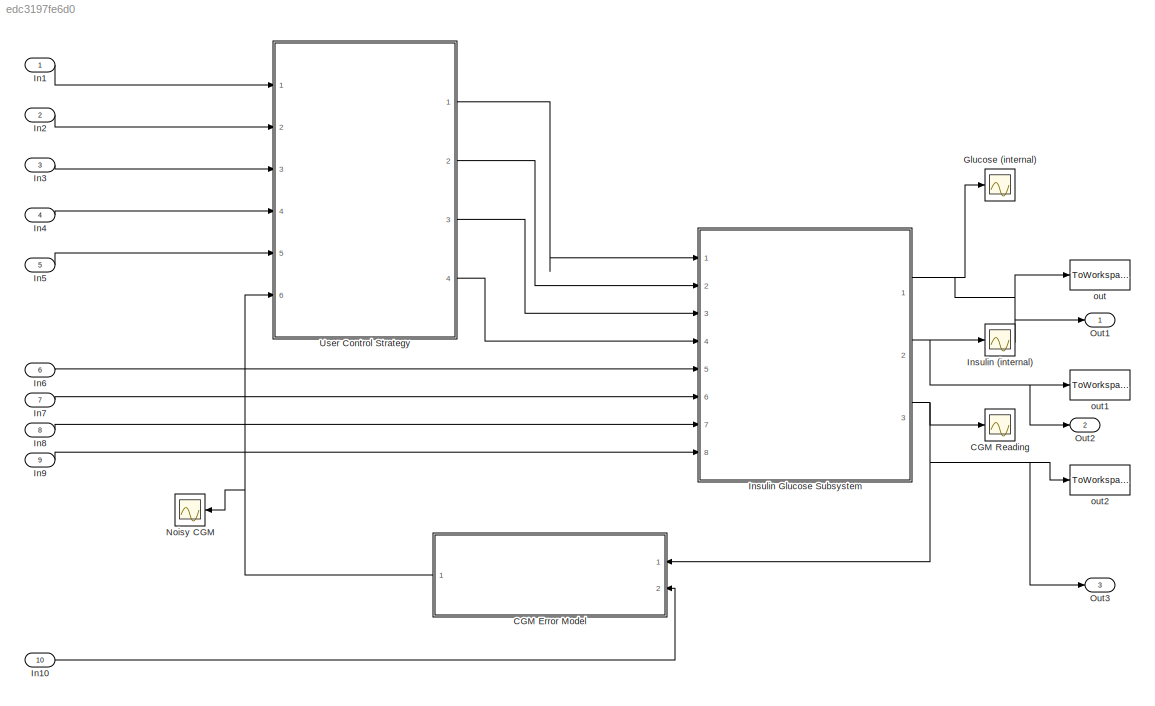
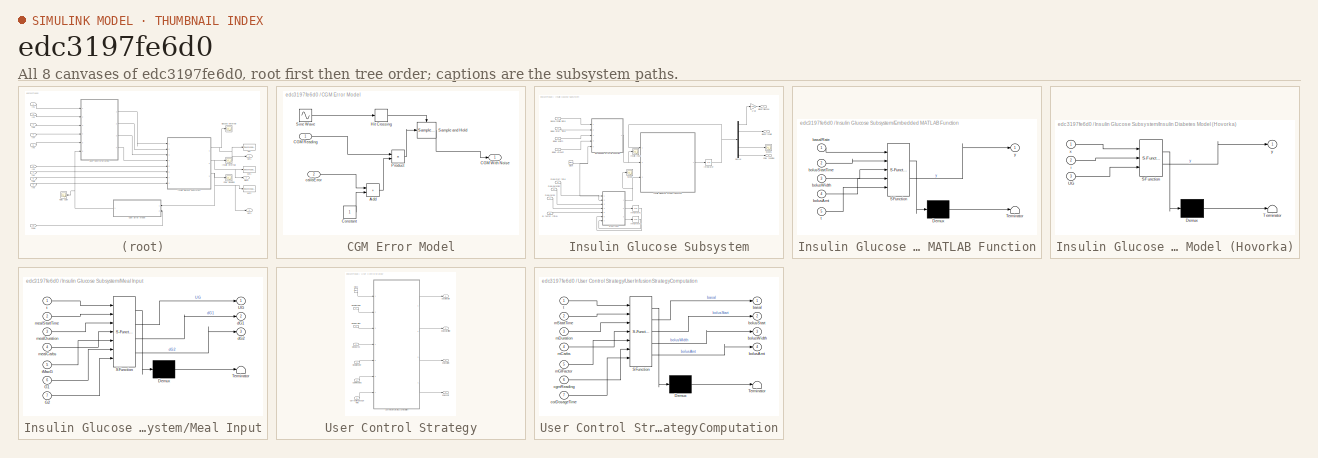
[diagram: thumbnail index - all 8 canvases of the model, root first then tree order]
MODEL mdl_edc3197fe6d0
KIND model
CONFIG AbsTol = auto
CONFIG EnableMultiTasking = on
CONFIG FixedStep = auto
CONFIG MaxStep = auto
CONFIG MinStep = auto
CONFIG RelTol = 1e-3
CONFIG SampleTimeConstraint = Unconstrained
CONFIG SolverName = ode3
CONFIG StartTime = 0
CONFIG StopTime = 500
BLOCK [SubSystem] CGM Error Model
  Ports = [2, 1]
  RequestExecContextInheritance = off
BLOCK [Sum] CGM Error Model/Add
  IconShape = rectangular
  Ports = [2, 1]
BLOCK [Inport] CGM Error Model/CGM Reading
BLOCK [Outport] CGM Error Model/CGM With Noise
  VectorParamsAs1DForOutWhenUnconnected = off
BLOCK [Constant] CGM Error Model/Constant
BLOCK [HitCross] CGM Error Model/Hit Crossing
  HitCrossingDirection = rising
  Ports = [1, 1]
BLOCK [Product] CGM Error Model/Product
  Ports = [2, 1]
  RndMeth = Zero
BLOCK [Reference] CGM Error Model/Sample and Hold  REF=dspsigops/Sample
and Hold
  Ports = [1, 1, 0, 1]
  SourceBlock = dspsigops/Sample\nand Hold
  SourceProductBaseCode = DS
  SourceType = Sample and Hold
BLOCK [Sin] CGM Error Model/Sine Wave
  Frequency = 2 * 3.1415/20
  Ports = [0, 1]
  SampleTime = 0
BLOCK [Inport] CGM Error Model/calibError
  Port = 2
BLOCK [Scope] CGM Reading
  Floating = off
  NumInputPorts = 1
  Ports = [1]
  ScopeSpecificationString = C++SS(StrPVP('Location','[445, 82, 786, 437]'),StrPVP('Open','off'),MxPVP('AxesTitles',54,'struct(''axes1'',''%<SignalLabel>'')'),StrPVP('YMin','0'),StrPVP('YMax','12'),StrPVP('SaveName','ScopeData3'),StrPVP('DataFormat','StructureWithTime'),StrPVP('BlockParamSampleTime','0'),StrPVP('LimitDataPoints','on'),StrPVP('Decimation','1'),StrPVP('BlockParamSampleInput','off'))
BLOCK [Scope] Glucose (internal)
  Floating = off
  NumInputPorts = 1
  Ports = [1]
  ScopeSpecificationString = C++SS(StrPVP('Location','[107, 82, 450, 435]'),StrPVP('Open','off'),StrPVP('ZoomMode','yonly'),MxPVP('AxesTitles',54,'struct(''axes1'',''%<SignalLabel>'')'),StrPVP('YMin','0'),StrPVP('YMax','12'),StrPVP('SaveName','ScopeData5'),StrPVP('DataFormat','StructureWithTime'),StrPVP('BlockParamSampleTime','0'),StrPVP('LimitDataPoints','on'),StrPVP('Decimation','1'),StrPVP('BlockParamSampleInput','off'))
BLOCK [Inport] In1
BLOCK [Inport] In10
  Port = 10
BLOCK [Inport] In2
  Port = 2
BLOCK [Inport] In3
  Port = 3
BLOCK [Inport] In4
  Port = 4
BLOCK [Inport] In5
  Port = 5
BLOCK [Inport] In6
  Port = 6
BLOCK [Inport] In7
  Port = 7
BLOCK [Inport] In8
  Port = 8
BLOCK [Inport] In9
  Port = 9
BLOCK [Scope] Insulin (internal)
  Floating = off
  NumInputPorts = 1
  Ports = [1]
  ScopeSpecificationString = C++SS(StrPVP('Location','[774, 82, 1116, 417]'),StrPVP('Open','off'),MxPVP('AxesTitles',54,'struct(''axes1'',''%<SignalLabel>'')'),StrPVP('YMin','0'),StrPVP('YMax','0.1'),StrPVP('SaveName','ScopeData6'),StrPVP('DataFormat','StructureWithTime'),StrPVP('BlockParamSampleTime','0'),StrPVP('LimitDataPoints','on'),StrPVP('Decimation','1'),StrPVP('BlockParamSampleInput','off'))
BLOCK [SubSystem] Insulin Glucose Subsystem
  Ports = [8, 3]
  RequestExecContextInheritance = off
BLOCK [Gain] Insulin Glucose Subsystem/1//Vg
  Gain = 1/16
BLOCK [Inport] Insulin Glucose Subsystem/Basal Insulin Rate
BLOCK [Outport] Insulin Glucose Subsystem/Blood Glucose
  VectorParamsAs1DForOutWhenUnconnected = off
BLOCK [Outport] Insulin Glucose Subsystem/Blood Insulin
  Port = 2
  VectorParamsAs1DForOutWhenUnconnected = off
BLOCK [Inport] Insulin Glucose Subsystem/Bolus Amount
  Port = 4
BLOCK [Inport] Insulin Glucose Subsystem/Bolus Start Time
  Port = 2
BLOCK [Inport] Insulin Glucose Subsystem/Bolus Width
  Port = 3
BLOCK [Outport] Insulin Glucose Subsystem/CGM reading
  Port = 3
  VectorParamsAs1DForOutWhenUnconnected = off
BLOCK [Clock] Insulin Glucose Subsystem/Clock
  Decimation = 1000
BLOCK [Demux] Insulin Glucose Subsystem/Demux
  Outputs = 9
  Ports = [1, 9]
BLOCK [SubSystem] Insulin Glucose Subsystem/Embedded MATLAB Function
  ErrorFcn = Stateflow.Translate.translate
  PermitHierarchicalResolution = ExplicitOnly
  Ports = [5, 1]
  RequestExecContextInheritance = off
  SFBlockType = MATLAB Function
  TreatAsAtomicUnit = on
BLOCK [Demux] Insulin Glucose Subsystem/Embedded MATLAB Function/ Demux 
  Outputs = 1
  Ports = [1, 1]
BLOCK [S-Function] Insulin Glucose Subsystem/Embedded MATLAB Function/ SFunction 
  EnableBusSupport = off
  FunctionName = sf_sfun
  PortCounts = [5 2]
  Ports = [5, 2]
  SFcnIsStateOwnerBlock = off
  SFunctionDeploymentMode = off
  Tag = Stateflow S-Function 3
BLOCK [Terminator] Insulin Glucose Subsystem/Embedded MATLAB Function/ Terminator 
BLOCK [Inport] Insulin Glucose Subsystem/Embedded MATLAB Function/basalRate
BLOCK [Inport] Insulin Glucose Subsystem/Embedded MATLAB Function/bolusAmt
  Port = 4
BLOCK [Inport] Insulin Glucose Subsystem/Embedded MATLAB Function/bolusStartTime
  Port = 2
BLOCK [Inport] Insulin Glucose Subsystem/Embedded MATLAB Function/bolusWidth
  Port = 3
BLOCK [Inport] Insulin Glucose Subsystem/Embedded MATLAB Function/t
  Port = 5
BLOCK [Outport] Insulin Glucose Subsystem/Embedded MATLAB Function/y
  VectorParamsAs1DForOutWhenUnconnected = off
BLOCK [Inport] Insulin Glucose Subsystem/GI factor (time)
  Port = 8
BLOCK [SubSystem] Insulin Glucose Subsystem/Insulin Diabetes Model (Hovorka)
  ErrorFcn = Stateflow.Translate.translate
  PermitHierarchicalResolution = ExplicitOnly
  Ports = [3, 1]
  RequestExecContextInheritance = off
  SFBlockType = MATLAB Function
  TreatAsAtomicUnit = on
BLOCK [Demux] Insulin Glucose Subsystem/Insulin Diabetes Model (Hovorka)/ Demux 
  Outputs = 1
  Ports = [1, 1]
BLOCK [S-Function] Insulin Glucose Subsystem/Insulin Diabetes Model (Hovorka)/ SFunction 
  EnableBusSupport = off
  FunctionName = sf_sfun
  PortCounts = [3 2]
  Ports = [3, 2]
  SFcnIsStateOwnerBlock = off
  SFunctionDeploymentMode = off
  Tag = Stateflow S-Function 2
BLOCK [Terminator] Insulin Glucose Subsystem/Insulin Diabetes Model (Hovorka)/ Terminator 
BLOCK [Inport] Insulin Glucose Subsystem/Insulin Diabetes Model (Hovorka)/UG
  Port = 3
BLOCK [Inport] Insulin Glucose Subsystem/Insulin Diabetes Model (Hovorka)/i
  Port = 2
BLOCK [Inport] Insulin Glucose Subsystem/Insulin Diabetes Model (Hovorka)/x
BLOCK [Outport] Insulin Glucose Subsystem/Insulin Diabetes Model (Hovorka)/y
  VectorParamsAs1DForOutWhenUnconnected = off
BLOCK [Scope] Insulin Glucose Subsystem/Insulin Input
  Floating = off
  NumInputPorts = 1
  Ports = [1]
  ScopeSpecificationString = C++SS(StrPVP('Location','[33, 71, 1124, 633]'),StrPVP('Open','off'),MxPVP('AxesTitles',54,'struct(''axes1'',''%<SignalLabel>'')'),StrPVP('YMin','0'),StrPVP('YMax','2.5'),StrPVP('SaveName','ScopeData4'),StrPVP('DataFormat','StructureWithTime'),StrPVP('BlockParamSampleTime','0'),StrPVP('LimitDataPoints','on'),StrPVP('Decimation','1'),StrPVP('BlockParamSampleInput','off'))
BLOCK [Integrator] Insulin Glucose Subsystem/Integrator
  InitialCondition = [64.0; 40.0; 0.03 ; 0.03; 0.045; 0.04; 4.2; 4; 4]
  Ports = [1, 1]
BLOCK [Integrator] Insulin Glucose Subsystem/Integrator1
  Ports = [1, 1]
BLOCK [Integrator] Insulin Glucose Subsystem/Integrator2
  Ports = [1, 1]
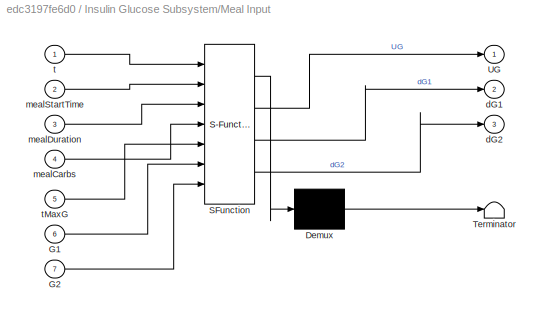
BLOCK [SubSystem] Insulin Glucose Subsystem/Meal Input
  ErrorFcn = Stateflow.Translate.translate
  PermitHierarchicalResolution = ExplicitOnly
  Ports = [7, 3]
  RequestExecContextInheritance = off
  SFBlockType = MATLAB Function
  TreatAsAtomicUnit = on
BLOCK [Demux] Insulin Glucose Subsystem/Meal Input/ Demux 
  Outputs = 1
  Ports = [1, 1]
BLOCK [S-Function] Insulin Glucose Subsystem/Meal Input/ SFunction 
  EnableBusSupport = off
  FunctionName = sf_sfun
  PortCounts = [7 4]
  Ports = [7, 4]
  SFcnIsStateOwnerBlock = off
  SFunctionDeploymentMode = off
  Tag = Stateflow S-Function 1
BLOCK [Terminator] Insulin Glucose Subsystem/Meal Input/ Terminator 
BLOCK [Inport] Insulin Glucose Subsystem/Meal Input/G1
  Port = 6
BLOCK [Inport] Insulin Glucose Subsystem/Meal Input/G2
  Port = 7
BLOCK [Outport] Insulin Glucose Subsystem/Meal Input/UG
  VectorParamsAs1DForOutWhenUnconnected = off
BLOCK [Outport] Insulin Glucose Subsystem/Meal Input/dG1
  Port = 2
  VectorParamsAs1DForOutWhenUnconnected = off
BLOCK [Outport] Insulin Glucose Subsystem/Meal Input/dG2
  Port = 3
  VectorParamsAs1DForOutWhenUnconnected = off
BLOCK [Inport] Insulin Glucose Subsystem/Meal Input/mealCarbs
  Port = 4
BLOCK [Inport] Insulin Glucose Subsystem/Meal Input/mealDuration
  Port = 3
BLOCK [Inport] Insulin Glucose Subsystem/Meal Input/mealStartTime
  Port = 2
BLOCK [Inport] Insulin Glucose Subsystem/Meal Input/t
BLOCK [Inport] Insulin Glucose Subsystem/Meal Input/tMaxG
  Port = 5
BLOCK [Scope] Insulin Glucose Subsystem/Scope
  Floating = off
  NumInputPorts = 1
  Ports = [1]
  ScopeSpecificationString = C++SS(StrPVP('Location','[181, 390, 505, 629]'),StrPVP('Open','off'),MxPVP('AxesTitles',54,'struct(''axes1'',''%<SignalLabel>'')'),StrPVP('DataFormat','StructureWithTime'),StrPVP('BlockParamSampleTime','0'),StrPVP('LimitDataPoints','on'),StrPVP('Decimation','1'),StrPVP('BlockParamSampleInput','off'))
BLOCK [Scope] Insulin Glucose Subsystem/Scope1
  Floating = off
  NumInputPorts = 1
  Ports = [1]
  ScopeSpecificationString = C++SS(StrPVP('Location','[181, 390, 668, 668]'),StrPVP('Open','off'),MxPVP('AxesTitles',54,'struct(''axes1'',''%<SignalLabel>'')'),StrPVP('SaveName','ScopeData7'),StrPVP('DataFormat','StructureWithTime'),StrPVP('BlockParamSampleTime','0'),StrPVP('LimitDataPoints','on'),StrPVP('Decimation','1'),StrPVP('BlockParamSampleInput','off'))
BLOCK [Inport] Insulin Glucose Subsystem/meal carbs
  Port = 7
BLOCK [Inport] Insulin Glucose Subsystem/meal duration
  Port = 6
BLOCK [Inport] Insulin Glucose Subsystem/meal start time
  Port = 5
BLOCK [Scope] Noisy CGM
  Floating = off
  NumInputPorts = 1
  Ports = [1]
  ScopeSpecificationString = C++SS(StrPVP('Location','[67, 82, 1014, 695]'),StrPVP('Open','off'),StrPVP('ZoomMode','xonly'),MxPVP('AxesTitles',54,'struct(''axes1'',''%<SignalLabel>'')'),StrPVP('YMin','0'),StrPVP('YMax','12'),StrPVP('SaveName','ScopeData1'),StrPVP('DataFormat','StructureWithTime'),StrPVP('BlockParamSampleTime','0'),StrPVP('LimitDataPoints','on'),StrPVP('Decimation','1'),StrPVP('BlockParamSampleInput','off'))
BLOCK [Outport] Out1
  VectorParamsAs1DForOutWhenUnconnected = off
BLOCK [Outport] Out2
  Port = 2
  VectorParamsAs1DForOutWhenUnconnected = off
BLOCK [Outport] Out3
  Port = 3
  VectorParamsAs1DForOutWhenUnconnected = off
BLOCK [SubSystem] User Control Strategy
  Ports = [6, 4]
  RequestExecContextInheritance = off
BLOCK [Inport] User Control Strategy/CGM Reading
  Port = 6
BLOCK [Clock] User Control Strategy/Clock
BLOCK [Inport] User Control Strategy/Correction Dosage Time
  Port = 5
BLOCK [Inport] User Control Strategy/Meal  Start Time
BLOCK [Inport] User Control Strategy/Meal Carbs
  Port = 3
BLOCK [Inport] User Control Strategy/Meal Duration
  Port = 2
BLOCK [Inport] User Control Strategy/Meal GI Factor
  Port = 4
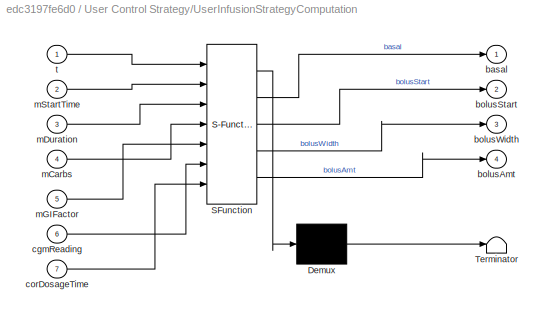
BLOCK [SubSystem] User Control Strategy/UserInfusionStrategyComputation
  ErrorFcn = Stateflow.Translate.translate
  PermitHierarchicalResolution = ExplicitOnly
  Ports = [7, 4]
  RequestExecContextInheritance = off
  SFBlockType = MATLAB Function
  TreatAsAtomicUnit = on
BLOCK [Demux] User Control Strategy/UserInfusionStrategyComputation/ Demux 
  Outputs = 1
  Ports = [1, 1]
BLOCK [S-Function] User Control Strategy/UserInfusionStrategyComputation/ SFunction 
  EnableBusSupport = off
  FunctionName = sf_sfun
  PortCounts = [7 5]
  Ports = [7, 5]
  SFcnIsStateOwnerBlock = off
  SFunctionDeploymentMode = off
  Tag = Stateflow S-Function 4
BLOCK [Terminator] User Control Strategy/UserInfusionStrategyComputation/ Terminator 
BLOCK [Outport] User Control Strategy/UserInfusionStrategyComputation/basal
  VectorParamsAs1DForOutWhenUnconnected = off
BLOCK [Outport] User Control Strategy/UserInfusionStrategyComputation/bolusAmt
  Port = 4
  VectorParamsAs1DForOutWhenUnconnected = off
BLOCK [Outport] User Control Strategy/UserInfusionStrategyComputation/bolusStart
  Port = 2
  VectorParamsAs1DForOutWhenUnconnected = off
BLOCK [Outport] User Control Strategy/UserInfusionStrategyComputation/bolusWidth
  Port = 3
  VectorParamsAs1DForOutWhenUnconnected = off
BLOCK [Inport] User Control Strategy/UserInfusionStrategyComputation/cgmReading
  Port = 6
BLOCK [Inport] User Control Strategy/UserInfusionStrategyComputation/corDosageTime
  Port = 7
BLOCK [Inport] User Control Strategy/UserInfusionStrategyComputation/mCarbs
  Port = 4
BLOCK [Inport] User Control Strategy/UserInfusionStrategyComputation/mDuration
  Port = 3
BLOCK [Inport] User Control Strategy/UserInfusionStrategyComputation/mGIFactor
  Port = 5
BLOCK [Inport] User Control Strategy/UserInfusionStrategyComputation/mStartTime
  Port = 2
BLOCK [Inport] User Control Strategy/UserInfusionStrategyComputation/t
BLOCK [Outport] User Control Strategy/basal Insulin
  VectorParamsAs1DForOutWhenUnconnected = off
BLOCK [Outport] User Control Strategy/bolus amt.
  Port = 4
  VectorParamsAs1DForOutWhenUnconnected = off
BLOCK [Outport] User Control Strategy/bolus start time
  Port = 2
  VectorParamsAs1DForOutWhenUnconnected = off
BLOCK [Outport] User Control Strategy/bolus width
  Port = 3
  VectorParamsAs1DForOutWhenUnconnected = off
BLOCK [ToWorkspace] out
  MaxDataPoints = inf
  Ports = [1]
  SampleTime = -1
  VariableName = Gt
BLOCK [ToWorkspace] out1
  MaxDataPoints = inf
  Ports = [1]
  SampleTime = -1
  VariableName = It
BLOCK [ToWorkspace] out2
  MaxDataPoints = inf
  Ports = [1]
  SampleTime = -1
  VariableName = Ct
LINE CGM Error Model/Add:1 -> CGM Error Model/Product:2
LINE CGM Error Model/CGM Reading:1 -> CGM Error Model/Product:1
LINE CGM Error Model/Constant:1 -> CGM Error Model/Add:2
LINE CGM Error Model/Hit Crossing:1 -> CGM Error Model/Sample and Hold:trigger
LINE CGM Error Model/Product:1 -> CGM Error Model/Sample and Hold:1
LINE CGM Error Model/Sample and Hold:1 -> CGM Error Model/CGM With Noise:1
LINE CGM Error Model/Sine Wave:1 -> CGM Error Model/Hit Crossing:1
LINE CGM Error Model/calibError:1 -> CGM Error Model/Add:1
NET CGM Error Model:1 -> Noisy CGM:1, User Control Strategy:6
LINE In10:1 -> CGM Error Model:2
LINE In1:1 -> User Control Strategy:1
LINE In2:1 -> User Control Strategy:2
LINE In3:1 -> User Control Strategy:3
LINE In4:1 -> User Control Strategy:4
LINE In5:1 -> User Control Strategy:5
LINE In6:1 -> Insulin Glucose Subsystem:5
LINE In7:1 -> Insulin Glucose Subsystem:6
LINE In8:1 -> Insulin Glucose Subsystem:7
LINE In9:1 -> Insulin Glucose Subsystem:8
LINE Insulin Glucose Subsystem/1//Vg:1 -> Insulin Glucose Subsystem/Blood Glucose:1
LINE Insulin Glucose Subsystem/Basal Insulin Rate:1 -> Insulin Glucose Subsystem/Embedded MATLAB Function:1
LINE Insulin Glucose Subsystem/Bolus Amount:1 -> Insulin Glucose Subsystem/Embedded MATLAB Function:4
LINE Insulin Glucose Subsystem/Bolus Start Time:1 -> Insulin Glucose Subsystem/Embedded MATLAB Function:2
LINE Insulin Glucose Subsystem/Bolus Width:1 -> Insulin Glucose Subsystem/Embedded MATLAB Function:3
NET Insulin Glucose Subsystem/Clock:1 -> Insulin Glucose Subsystem/Embedded MATLAB Function:5, Insulin Glucose Subsystem/Meal Input:1
LINE Insulin Glucose Subsystem/Demux:1 -> Insulin Glucose Subsystem/1//Vg:1
LINE Insulin Glucose Subsystem/Demux:3 -> Insulin Glucose Subsystem/Blood Insulin:1
LINE Insulin Glucose Subsystem/Demux:7 -> Insulin Glucose Subsystem/Scope1:1
LINE Insulin Glucose Subsystem/Demux:9 -> Insulin Glucose Subsystem/CGM reading:1
NET Insulin Glucose Subsystem/Embedded MATLAB Function:1 -> Insulin Glucose Subsystem/Insulin Diabetes Model (Hovorka):2, Insulin Glucose Subsystem/Insulin Input:1
LINE Insulin Glucose Subsystem/GI factor (time):1 -> Insulin Glucose Subsystem/Meal Input:5
LINE Insulin Glucose Subsystem/Insulin Diabetes Model (Hovorka):1 -> Insulin Glucose Subsystem/Integrator:1
LINE Insulin Glucose Subsystem/Integrator1:1 -> Insulin Glucose Subsystem/Meal Input:6
LINE Insulin Glucose Subsystem/Integrator2:1 -> Insulin Glucose Subsystem/Meal Input:7
NET Insulin Glucose Subsystem/Integrator:1 -> Insulin Glucose Subsystem/Demux:1, Insulin Glucose Subsystem/Insulin Diabetes Model (Hovorka):1
NET Insulin Glucose Subsystem/Meal Input:1 -> Insulin Glucose Subsystem/Insulin Diabetes Model (Hovorka):3, Insulin Glucose Subsystem/Scope:1
LINE Insulin Glucose Subsystem/Meal Input:2 -> Insulin Glucose Subsystem/Integrator1:1
LINE Insulin Glucose Subsystem/Meal Input:3 -> Insulin Glucose Subsystem/Integrator2:1
LINE Insulin Glucose Subsystem/meal carbs:1 -> Insulin Glucose Subsystem/Meal Input:4
LINE Insulin Glucose Subsystem/meal duration:1 -> Insulin Glucose Subsystem/Meal Input:3
LINE Insulin Glucose Subsystem/meal start time:1 -> Insulin Glucose Subsystem/Meal Input:2
NET Insulin Glucose Subsystem:1 -> Glucose (internal):1, Out1:1, out:1
NET Insulin Glucose Subsystem:2 -> Insulin (internal):1, Out2:1, out1:1
NET Insulin Glucose Subsystem:3 -> CGM Error Model:1, CGM Reading:1, Out3:1, out2:1
LINE User Control Strategy/CGM Reading:1 -> User Control Strategy/UserInfusionStrategyComputation:6
LINE User Control Strategy/Clock:1 -> User Control Strategy/UserInfusionStrategyComputation:1
LINE User Control Strategy/Correction Dosage Time:1 -> User Control Strategy/UserInfusionStrategyComputation:7
LINE User Control Strategy/Meal  Start Time:1 -> User Control Strategy/UserInfusionStrategyComputation:2
LINE User Control Strategy/Meal Carbs:1 -> User Control Strategy/UserInfusionStrategyComputation:4
LINE User Control Strategy/Meal Duration:1 -> User Control Strategy/UserInfusionStrategyComputation:3
LINE User Control Strategy/Meal GI Factor:1 -> User Control Strategy/UserInfusionStrategyComputation:5
LINE User Control Strategy/UserInfusionStrategyComputation:1 -> User Control Strategy/basal Insulin:1
LINE User Control Strategy/UserInfusionStrategyComputation:2 -> User Control Strategy/bolus start time:1
LINE User Control Strategy/UserInfusionStrategyComputation:3 -> User Control Strategy/bolus width:1
LINE User Control Strategy/UserInfusionStrategyComputation:4 -> User Control Strategy/bolus amt.:1
LINE User Control Strategy:1 -> Insulin Glucose Subsystem:1
LINE User Control Strategy:2 -> Insulin Glucose Subsystem:2
LINE User Control Strategy:3 -> Insulin Glucose Subsystem:3
LINE User Control Strategy:4 -> Insulin Glucose Subsystem:4
note: NET lines group one-source signal fan-out (src -> all destinations, sorted); 1:1 wires keep LINE
CHART Insulin Glucose Subsystem/Meal Input states=1 transitions=1
  STATE_LABEL 'eML_blk_kernel()'
  STATE_LABEL 'SCRIPT:\nfunction [UG,dG1,dG2] = mealInput(t,mealStartTime, mealDuration, mealCarbs,tMaxG, G1,G2)\n% mealInput: Obtain the meal glucose input as a function of time given \n%   t : current simulation time\n%   mealStartTime: when did the meal start\n%   mealDuration: what is the meal duration.\n%   mealCarbs: how many gms of carbs in the meal\n\n\ny = 0.0; %% default output\nfTimeVec = [0.0; 0.2; 0.8; 1.0];\n...<+489ch>'
CHART Insulin Glucose Subsystem/Insulin Diabetes Model
(Hovorka) states=1 transitions=1
  STATE_LABEL 'eML_blk_kernel()'
  STATE_LABEL 'SCRIPT:\nfunction y = insulinGlucoseSimulinkBlkFun(x,i,UG)\n\n%% De Model Constants\nw = 100; %% Patient weight (kg)\nk12 = 0.066; %% Transfer rate for insulin\nka1 = 0.006; %% deactivation rate for insulin transport\nka2 = 0.06; %% deactivation rate for insulin EGP\nka3 = 0.03; %% deactivation rate for insulin ??\nkb1=0.0034;\nkb2=0.056;\nkb3=0.024;\nke = 0.138; %% insulin elimination from plasma\nVI = 0.12 *...<+1438ch>'
CHART Insulin Glucose Subsystem/Embedded
MATLAB Function states=1 transitions=1
  STATE_LABEL 'eML_blk_kernel()'
  STATE_LABEL 'SCRIPT:\nfunction y = insulinPump(basalRate, bolusStartTime, bolusWidth, bolusAmt,t)\n%% insulinInfusionPump: Simulate the action of an insulin infusion pump roughly \n%%    basalRate: the basal infusion rate\n%%    bolusStartTime:  if this is  > 0 then it specifies when the bolus should be started.\n%%    bolusWidth: how long should the bolus last\n%%    bolusAmt: what should the bolus amount be\n\ny = b...<+607ch>'
CHART User Control Strategy/UserInfusionStrategyComputation states=1 transitions=1
  STATE_LABEL 'eML_blk_kernel()'
  STATE_LABEL 'SCRIPT:\nfunction [basal,bolusStart, bolusWidth,bolusAmt] =  computeUserInfusionStrategy(t, mStartTime, mDuration, mCarbs, mGIFactor, cgmReading, corDosageTime)\n%% function computeUserInfusionStrategy\n%% compute the basal insulin, bolus start time, bolus width, bolus amount, meal start time \n%% t = current simulation time\n%% mStartTime: meal starting time.\n%% mDuration: meal duration\n%% mGIFactor: ...<+719ch>'
CHART  states=0 transitions=0
CHART  states=0 transitions=0
CHART  states=0 transitions=0
CHART  states=0 transitions=0
